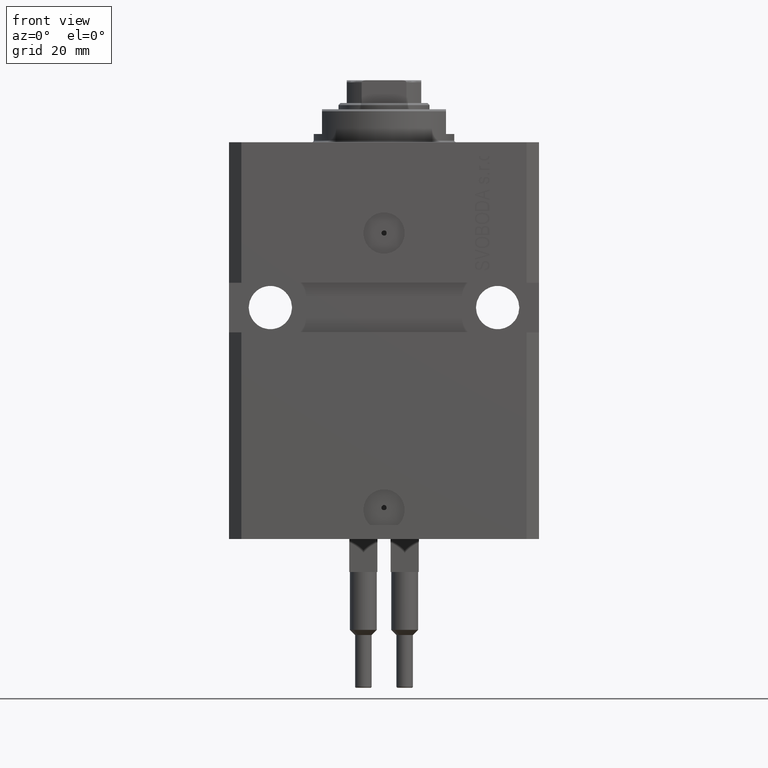
[diagram: clean part render]
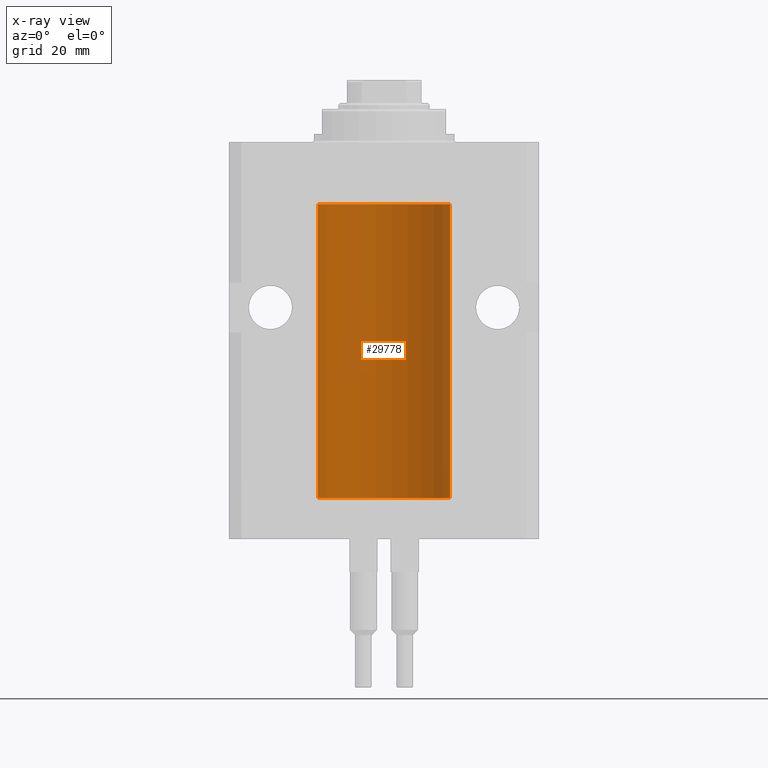
[diagram: x-ray — body ghosted, one internal face saturated and labeled with its STEP entity id]
A machine part, front view, then the same camera in x-ray: the body is ghosted and one INTERNAL B-rep face — a face not visible from any outside direction — is saturated and labeled: STEP entity #29778.
In plain terms, the highlighted cylindrical surface (partial cylindrical patch) has radius 16 mm, axis along (0, 0, 1).
Its self-contained STEP definition (entity closure, byte-faithful):
#133 = ORIENTED_EDGE ( 'NONE', *, *, #39346, .F. ) ;
#257 = CARTESIAN_POINT ( 'NONE',  ( 15.99070695999103542, 0.5461439696927204990, -83.68526802364046091 ) ) ;
#277 = CARTESIAN_POINT ( 'NONE',  ( -16.00000000000000000, 1.643679961284177128E-16, -21.37499999999999645 ) ) ;
#781 = CARTESIAN_POINT ( 'NONE',  ( 16.00000000000000000, 2.111103446002389479E-15, -22.62500000000000000 ) ) ;
#1018 = DIRECTION ( 'NONE',  ( 1.000000000000000000, 0.000000000000000000, 0.000000000000000000 ) ) ;
#1038 = CARTESIAN_POINT ( 'NONE',  ( -15.99228023727723702, 0.5003781296993375927, -84.38347829554236057 ) ) ;
#2266 = VERTEX_POINT ( 'NONE', #3461 ) ;
#3103 = CARTESIAN_POINT ( 'NONE',  ( 15.98778830858070954, 0.6250000000079481977, -21.99999999999914735 ) ) ;
#3291 = DIRECTION ( 'NONE',  ( -0.000000000000000000, -0.000000000000000000, 1.000000000000000000 ) ) ;
#3340 = CARTESIAN_POINT ( 'NONE',  ( 15.99999999999999645, 0.08261762387942306329, -22.62499999999997868 ) ) ;
#3461 = CARTESIAN_POINT ( 'NONE',  ( -16.00000000000000000, 1.959434878635765131E-15, -86.09999999999999432 ) ) ;
#3689 = CARTESIAN_POINT ( 'NONE',  ( -16.00000000000000711, 0.08259886010189904093, -21.37500000000000000 ) ) ;
#3908 = CARTESIAN_POINT ( 'NONE',  ( 15.98778830858103817, 0.6249999999997223332, -83.91847885046213662 ) ) ;
#4049 = CARTESIAN_POINT ( 'NONE',  ( -16.00000000000001066, 0.08259886010188825789, -83.37500000000001421 ) ) ;
#4165 = CARTESIAN_POINT ( 'NONE',  ( -15.98844267028591482, 0.6088369347963316081, -22.16324735024328518 ) ) ;
#4440 = DIRECTION ( 'NONE',  ( -0.000000000000000000, -0.000000000000000000, 1.000000000000000000 ) ) ;
#4777 = CARTESIAN_POINT ( 'NONE',  ( 0.000000000000000000, 0.000000000000000000, -86.09999999999999432 ) ) ;
#5496 = CARTESIAN_POINT ( 'NONE',  ( 15.98778830858101152, 0.6250000000002222666, -84.16311639173022741 ) ) ;
#6385 = VERTEX_POINT ( 'NONE', #19102 ) ;
#6507 = LINE ( 'NONE', #39639, #33250 ) ;
#7108 = B_SPLINE_CURVE_WITH_KNOTS ( 'NONE', 3,
 ( #8325, #30502, #44407, #7860, #30036, #40992, #7622, #8085 ),
 .UNSPECIFIED., .F., .F.,
 ( 4, 2, 2, 4 ),
 ( 0.0009773326288699782545, 0.001221554802188574377, 0.001465776975507170283, 0.001954221322144355372 ),
 .UNSPECIFIED. ) ;
#7622 = CARTESIAN_POINT ( 'NONE',  ( 15.99999999999998934, 0.1631343969470015198, -21.37500000000020961 ) ) ;
#7680 = ORIENTED_EDGE ( 'NONE', *, *, #20516, .T. ) ;
#7860 = CARTESIAN_POINT ( 'NONE',  ( 15.99070695999104252, 0.5461439696926365661, -21.68526802364053196 ) ) ;
#8085 = CARTESIAN_POINT ( 'NONE',  ( 16.00000000000013145, 3.665532680419208314E-13, -21.37499999999658229 ) ) ;
#8151 = VECTOR ( 'NONE', #29513, 1000.000000000000000 ) ;
#8325 = CARTESIAN_POINT ( 'NONE',  ( 15.98778830858070954, 0.6250000000079481977, -21.99999999999914735 ) ) ;
#8496 = B_SPLINE_CURVE_WITH_KNOTS ( 'NONE', 3,
 ( #14879, #3908, #29745, #257, #47541, #18286, #11208, #33156 ),
 .UNSPECIFIED., .F., .F.,
 ( 4, 2, 2, 4 ),
 ( 0.0009773326288700682433, 0.001221554802188685399, 0.001465776975507302772, 0.001954221322144537518 ),
 .UNSPECIFIED. ) ;
#8499 = B_SPLINE_CURVE_WITH_KNOTS ( 'NONE', 3,
 ( #38879, #20843, #27662, #16218, #46173, #45937, #5496, #9869 ),
 .UNSPECIFIED., .F., .F.,
 ( 4, 2, 2, 4 ),
 ( 1.783888443149829469E-18, 0.0002443331572175111519, 0.0004886663144350204607, 0.0009773326288700682433 ),
 .UNSPECIFIED. ) ;
#8964 = EDGE_CURVE ( 'NONE', #45101, #39793, #7108, .T. ) ;
#9504 = B_SPLINE_CURVE_WITH_KNOTS ( 'NONE', 3,
 ( #40362, #3340, #10880, #46968, #21384, #21620, #36497, #3103 ),
 .UNSPECIFIED., .F., .F.,
 ( 4, 2, 2, 4 ),
 ( 3.199434161265750614E-18, 0.0002443331572174949973, 0.0004886663144349868504, 0.0009773326288699782545 ),
 .UNSPECIFIED. ) ;
#9662 = CARTESIAN_POINT ( 'NONE',  ( -16.00000000000000000, 1.959434878635765131E-15, -86.09999999999999432 ) ) ;
#9836 = VERTEX_POINT ( 'NONE', #781 ) ;
#9869 = CARTESIAN_POINT ( 'NONE',  ( 15.98778830858070954, 0.6250000000080517815, -83.99999999999916156 ) ) ;
#10218 = VERTEX_POINT ( 'NONE', #16070 ) ;
#10880 = CARTESIAN_POINT ( 'NONE',  ( 15.99934183755191341, 0.1636877470526797440, -22.60872690654067796 ) ) ;
#11104 = CARTESIAN_POINT ( 'NONE',  ( -15.99070426498502862, 0.5462220647145625829, -84.31460064614141459 ) ) ;
#11208 = CARTESIAN_POINT ( 'NONE',  ( 15.99999999999999645, 0.1631343969470158417, -83.37500000000019895 ) ) ;
#11232 = CARTESIAN_POINT ( 'NONE',  ( -15.99934216141748244, 0.1636497843296417787, -21.39126528029306229 ) ) ;
#12429 = CARTESIAN_POINT ( 'NONE',  ( -15.99711699979842017, 0.3253759916140657737, -22.55856151623175521 ) ) ;
#13331 = ORIENTED_EDGE ( 'NONE', *, *, #8964, .T. ) ;
#14177 = CARTESIAN_POINT ( 'NONE',  ( -15.99070426498503217, 0.5462220647145618058, -22.31460064614143590 ) ) ;
#14318 = CARTESIAN_POINT ( 'NONE',  ( -16.00000000000000000, 1.959434878635765131E-15, -86.09999999999999432 ) ) ;
#14630 = VERTEX_POINT ( 'NONE', #22132 ) ;
#14879 = CARTESIAN_POINT ( 'NONE',  ( 15.98778830858070954, 0.6250000000080517815, -83.99999999999916156 ) ) ;
#14975 = LINE ( 'NONE', #29603, #47717 ) ;
#15029 = DIRECTION ( 'NONE',  ( 1.000000000000000000, 0.000000000000000000, 0.000000000000000000 ) ) ;
#15138 = CARTESIAN_POINT ( 'NONE',  ( -15.99548640841683067, 0.3843705577988847377, -21.50046628527008608 ) ) ;
#15375 = CARTESIAN_POINT ( 'NONE',  ( -16.00000000000013145, 3.685127038166941002E-13, -22.62500000000341771 ) ) ;
#15489 = DIRECTION ( 'NONE',  ( 1.000000000000000000, 0.000000000000000000, 0.000000000000000000 ) ) ;
#15618 = EDGE_CURVE ( 'NONE', #29805, #37355, #20641, .T. ) ;
#16070 = CARTESIAN_POINT ( 'NONE',  ( -16.00000000000000000, 1.643679961284177128E-16, -21.37499999999999645 ) ) ;
#16158 = ORIENTED_EDGE ( 'NONE', *, *, #45634, .T. ) ;
#16218 = CARTESIAN_POINT ( 'NONE',  ( 15.99707608081895138, 0.3151028052310259620, -84.54594170697733091 ) ) ;
#16362 = DIRECTION ( 'NONE',  ( -0.000000000000000000, -0.000000000000000000, 1.000000000000000000 ) ) ;
#16770 = CARTESIAN_POINT ( 'NONE',  ( 16.00000000000000000, 0.000000000000000000, -86.09999999999999432 ) ) ;
#16835 = AXIS2_PLACEMENT_3D ( 'NONE', #4777, #34506, #15029 ) ;
#18286 = CARTESIAN_POINT ( 'NONE',  ( 15.99711856062700477, 0.3252985083514284281, -83.44140297987712529 ) ) ;
#18457 = LINE ( 'NONE', #29904, #24258 ) ;
#18699 = DIRECTION ( 'NONE',  ( -0.000000000000000000, -0.000000000000000000, 1.000000000000000000 ) ) ;
#19102 = CARTESIAN_POINT ( 'NONE',  ( 15.98778830858070954, 0.6250000000080517815, -83.99999999999916156 ) ) ;
#19264 = VERTEX_POINT ( 'NONE', #28400 ) ;
#19510 = CARTESIAN_POINT ( 'NONE',  ( -15.99228023727724413, 0.5003781296993413674, -22.38347829554236057 ) ) ;
#19858 = EDGE_CURVE ( 'NONE', #39793, #14630, #18457, .T. ) ;
#20379 = VECTOR ( 'NONE', #35523, 1000.000000000000000 ) ;
#20516 = EDGE_CURVE ( 'NONE', #29805, #29854, #32356, .T. ) ;
#20641 = LINE ( 'NONE', #9662, #20379 ) ;
#20843 = CARTESIAN_POINT ( 'NONE',  ( 16.00000000000000711, 0.08261762387943046015, -84.62499999999997158 ) ) ;
#21359 = ORIENTED_EDGE ( 'NONE', *, *, #34090, .T. ) ;
#21384 = CARTESIAN_POINT ( 'NONE',  ( 15.99548458234361803, 0.3844468804815586727, -22.49947786696350960 ) ) ;
#21491 = CIRCLE ( 'NONE', #16835, 16.00000000000000000 ) ;
#21620 = CARTESIAN_POINT ( 'NONE',  ( 15.99070366873610993, 0.5574063959866684126, -22.32639436837550306 ) ) ;
#21731 = CARTESIAN_POINT ( 'NONE',  ( -15.98778717651346071, 0.6250289588122140971, -22.08131585687052478 ) ) ;
#22132 = CARTESIAN_POINT ( 'NONE',  ( 16.00000000000000000, 0.000000000000000000, -15.00000000000000000 ) ) ;
#22570 = CARTESIAN_POINT ( 'NONE',  ( -15.99548640841682712, 0.3843705577988801858, -83.50046628527007897 ) ) ;
#22582 = EDGE_CURVE ( 'NONE', #19264, #9836, #14975, .T. ) ;
#22692 = CARTESIAN_POINT ( 'NONE',  ( -15.99070653155267685, 0.5573233280232986475, -21.67348148680506625 ) ) ;
#23166 = CARTESIAN_POINT ( 'NONE',  ( -16.00000000000000000, 0.1631714642025800244, -22.62499999999985789 ) ) ;
#23674 = AXIS2_PLACEMENT_3D ( 'NONE', #34651, #4440, #1018 ) ;
#23971 = CARTESIAN_POINT ( 'NONE',  ( 16.00000000000013145, 3.665532680419208314E-13, -21.37499999999658229 ) ) ;
#24258 = VECTOR ( 'NONE', #18699, 1000.000000000000000 ) ;
#25398 = CARTESIAN_POINT ( 'NONE',  ( -15.99707730059171240, 0.3150375992092407373, -21.45402333202571654 ) ) ;
#25444 = ORIENTED_EDGE ( 'NONE', *, *, #31423, .T. ) ;
#25840 = ORIENTED_EDGE ( 'NONE', *, *, #33569, .F. ) ;
#26917 = CARTESIAN_POINT ( 'NONE',  ( 16.00000000000000000, -1.835653844722709729E-15, -84.62500000000000000 ) ) ;
#27114 = CARTESIAN_POINT ( 'NONE',  ( -15.99070653155267685, 0.5573233280232945397, -83.67348148680504494 ) ) ;
#27338 = CYLINDRICAL_SURFACE ( 'NONE', #23674, 16.00000000000000000 ) ;
#27662 = CARTESIAN_POINT ( 'NONE',  ( 15.99934183755190986, 0.1636877470527013101, -84.60872690654070993 ) ) ;
#28122 = ORIENTED_EDGE ( 'NONE', *, *, #22582, .T. ) ;
#28400 = CARTESIAN_POINT ( 'NONE',  ( 16.00000000000013145, 3.665532692826917502E-13, -83.37499999999657518 ) ) ;
#28417 = EDGE_LOOP ( 'NONE', ( #133, #25840, #25444, #16158, #21359, #28122, #40518, #13331, #36870, #39018, #36051, #41254, #31118, #7680 ) ) ;
#29157 = CARTESIAN_POINT ( 'NONE',  ( -15.99707730059171240, 0.3150375992092313004, -83.45402333202571299 ) ) ;
#29513 = DIRECTION ( 'NONE',  ( -0.000000000000000000, -0.000000000000000000, 1.000000000000000000 ) ) ;
#29603 = CARTESIAN_POINT ( 'NONE',  ( 16.00000000000000000, 0.000000000000000000, -86.09999999999999432 ) ) ;
#29643 = CARTESIAN_POINT ( 'NONE',  ( -15.98779057735153941, 0.6249419637998036015, -83.83670145863504786 ) ) ;
#29745 = CARTESIAN_POINT ( 'NONE',  ( 15.98844460043491367, 0.6087869699337551399, -83.83657454967556077 ) ) ;
#29778 = ADVANCED_FACE ( 'NONE', ( #41462 ), #27338, .F. ) ;
#29805 = VERTEX_POINT ( 'NONE', #30511 ) ;
#29854 = VERTEX_POINT ( 'NONE', #42924 ) ;
#29904 = CARTESIAN_POINT ( 'NONE',  ( 16.00000000000000000, 0.000000000000000000, -86.09999999999999432 ) ) ;
#30036 = CARTESIAN_POINT ( 'NONE',  ( 15.99228275317787151, 0.5002975944204001157, -21.61642014570180947 ) ) ;
#30502 = CARTESIAN_POINT ( 'NONE',  ( 15.98778830858103817, 0.6249999999996181943, -21.91847885046212951 ) ) ;
#30511 = CARTESIAN_POINT ( 'NONE',  ( -16.00000000000000000, -1.132739560727375767E-14, -83.37500000000000000 ) ) ;
#30606 = B_SPLINE_CURVE_WITH_KNOTS ( 'NONE', 3,
 ( #277, #3689, #11232, #25398, #15138, #22692, #37562, #21731, #4165, #14177, #19510, #12429, #23166, #15375 ),
 .UNSPECIFIED., .F., .F.,
 ( 4, 2, 2, 2, 2, 2, 4 ),
 ( 1.597328219370744179E-19, 0.0002442776652680942405, 0.0004885553305361882643, 0.0009771106610723839011, 0.001221388326340481665, 0.001465665991608579430, 0.001954221322144767369 ),
 .UNSPECIFIED. ) ;
#30833 = CARTESIAN_POINT ( 'NONE',  ( 0.000000000000000000, 0.000000000000000000, -15.00000000000000000 ) ) ;
#31118 = ORIENTED_EDGE ( 'NONE', *, *, #15618, .F. ) ;
#31423 = EDGE_CURVE ( 'NONE', #33385, #41863, #33401, .T. ) ;
#32132 = LINE ( 'NONE', #14318, #34917 ) ;
#32356 = B_SPLINE_CURVE_WITH_KNOTS ( 'NONE', 3,
 ( #33051, #4049, #41958, #29157, #22570, #27114, #29643, #38320, #34434, #11104, #1038, #40834, #47677, #36726 ),
 .UNSPECIFIED., .F., .F.,
 ( 4, 2, 2, 2, 2, 2, 4 ),
 ( 1.011024292976852032E-18, 0.0002442776652680925058, 0.0004885553305361839274, 0.0009771106610723669875, 0.001221388326340458463, 0.001465665991608549939, 0.001954221322144762164 ),
 .UNSPECIFIED. ) ;
#33051 = CARTESIAN_POINT ( 'NONE',  ( -16.00000000000000000, -1.132739560727375767E-14, -83.37500000000000000 ) ) ;
#33156 = CARTESIAN_POINT ( 'NONE',  ( 16.00000000000013145, 3.665532692826917502E-13, -83.37499999999657518 ) ) ;
#33163 = CARTESIAN_POINT ( 'NONE',  ( 16.00000000000000000, 0.000000000000000000, -86.09999999999999432 ) ) ;
#33250 = VECTOR ( 'NONE', #44480, 1000.000000000000000 ) ;
#33385 = VERTEX_POINT ( 'NONE', #16770 ) ;
#33401 = LINE ( 'NONE', #33163, #8151 ) ;
#33569 = EDGE_CURVE ( 'NONE', #33385, #2266, #21491, .T. ) ;
#33624 = CARTESIAN_POINT ( 'NONE',  ( -16.00000000000000000, 1.959434878635765131E-15, -15.00000000000000000 ) ) ;
#34090 = EDGE_CURVE ( 'NONE', #6385, #19264, #8496, .T. ) ;
#34434 = CARTESIAN_POINT ( 'NONE',  ( -15.98844267028591126, 0.6088369347963294986, -84.16324735024328163 ) ) ;
#34506 = DIRECTION ( 'NONE',  ( 0.000000000000000000, 0.000000000000000000, 1.000000000000000000 ) ) ;
#34651 = CARTESIAN_POINT ( 'NONE',  ( 0.000000000000000000, 0.000000000000000000, -86.09999999999999432 ) ) ;
#34917 = VECTOR ( 'NONE', #16362, 1000.000000000000000 ) ;
#35523 = DIRECTION ( 'NONE',  ( -0.000000000000000000, -0.000000000000000000, 1.000000000000000000 ) ) ;
#36051 = ORIENTED_EDGE ( 'NONE', *, *, #37258, .F. ) ;
#36497 = CARTESIAN_POINT ( 'NONE',  ( 15.98778830858101685, 0.6250000000001205702, -22.16311639173018833 ) ) ;
#36726 = CARTESIAN_POINT ( 'NONE',  ( -16.00000000000013145, 3.685127046438747128E-13, -84.62500000000343903 ) ) ;
#36870 = ORIENTED_EDGE ( 'NONE', *, *, #19858, .T. ) ;
#37224 = CIRCLE ( 'NONE', #38770, 16.00000000000000000 ) ;
#37258 = EDGE_CURVE ( 'NONE', #10218, #47244, #6507, .T. ) ;
#37355 = VERTEX_POINT ( 'NONE', #47910 ) ;
#37562 = CARTESIAN_POINT ( 'NONE',  ( -15.98779057735153941, 0.6249419637998100407, -21.83670145863507273 ) ) ;
#38265 = CARTESIAN_POINT ( 'NONE',  ( 15.98778830858070954, 0.6250000000079481977, -21.99999999999914735 ) ) ;
#38320 = CARTESIAN_POINT ( 'NONE',  ( -15.98778717651346071, 0.6250289588122114326, -84.08131585687050347 ) ) ;
#38454 = EDGE_CURVE ( 'NONE', #14630, #47244, #37224, .T. ) ;
#38770 = AXIS2_PLACEMENT_3D ( 'NONE', #30833, #45683, #15489 ) ;
#38879 = CARTESIAN_POINT ( 'NONE',  ( 16.00000000000000000, -1.835653844722709729E-15, -84.62500000000000000 ) ) ;
#39018 = ORIENTED_EDGE ( 'NONE', *, *, #38454, .T. ) ;
#39346 = EDGE_CURVE ( 'NONE', #2266, #29854, #32132, .T. ) ;
#39639 = CARTESIAN_POINT ( 'NONE',  ( -16.00000000000000000, 1.959434878635765131E-15, -86.09999999999999432 ) ) ;
#39793 = VERTEX_POINT ( 'NONE', #23971 ) ;
#40362 = CARTESIAN_POINT ( 'NONE',  ( 16.00000000000000000, 2.111103446002389479E-15, -22.62500000000000000 ) ) ;
#40518 = ORIENTED_EDGE ( 'NONE', *, *, #48094, .T. ) ;
#40834 = CARTESIAN_POINT ( 'NONE',  ( -15.99711699979841306, 0.3253759916140627761, -84.55856151623177652 ) ) ;
#40992 = CARTESIAN_POINT ( 'NONE',  ( 15.99711856062700122, 0.3252985083513914577, -21.44140297987715016 ) ) ;
#41254 = ORIENTED_EDGE ( 'NONE', *, *, #45019, .T. ) ;
#41462 = FACE_OUTER_BOUND ( 'NONE', #28417, .T. ) ;
#41863 = VERTEX_POINT ( 'NONE', #26917 ) ;
#41958 = CARTESIAN_POINT ( 'NONE',  ( -15.99934216141748244, 0.1636497843296325361, -83.39126528029306940 ) ) ;
#42924 = CARTESIAN_POINT ( 'NONE',  ( -16.00000000000013145, 3.685127046438747128E-13, -84.62500000000343903 ) ) ;
#44407 = CARTESIAN_POINT ( 'NONE',  ( 15.98844460043492077, 0.6087869699336542206, -21.83657454967558209 ) ) ;
#44480 = DIRECTION ( 'NONE',  ( -0.000000000000000000, -0.000000000000000000, 1.000000000000000000 ) ) ;
#45019 = EDGE_CURVE ( 'NONE', #10218, #37355, #30606, .T. ) ;
#45101 = VERTEX_POINT ( 'NONE', #38265 ) ;
#45634 = EDGE_CURVE ( 'NONE', #41863, #6385, #8499, .T. ) ;
#45683 = DIRECTION ( 'NONE',  ( 0.000000000000000000, 0.000000000000000000, 1.000000000000000000 ) ) ;
#45937 = CARTESIAN_POINT ( 'NONE',  ( 15.99070366873610638, 0.5574063959867601170, -84.32639436837554570 ) ) ;
#46173 = CARTESIAN_POINT ( 'NONE',  ( 15.99548458234361092, 0.3844468804816182916, -84.49947786696354513 ) ) ;
#46968 = CARTESIAN_POINT ( 'NONE',  ( 15.99707608081895138, 0.3151028052309821081, -22.54594170697727051 ) ) ;
#47244 = VERTEX_POINT ( 'NONE', #33624 ) ;
#47541 = CARTESIAN_POINT ( 'NONE',  ( 15.99228275317786441, 0.5002975944204781644, -83.61642014570176684 ) ) ;
#47677 = CARTESIAN_POINT ( 'NONE',  ( -15.99999999999999645, 0.1631714642025805795, -84.62499999999990052 ) ) ;
#47717 = VECTOR ( 'NONE', #3291, 1000.000000000000000 ) ;
#47910 = CARTESIAN_POINT ( 'NONE',  ( -16.00000000000013145, 3.685127038166941002E-13, -22.62500000000341771 ) ) ;
#48094 = EDGE_CURVE ( 'NONE', #9836, #45101, #9504, .T. ) ;